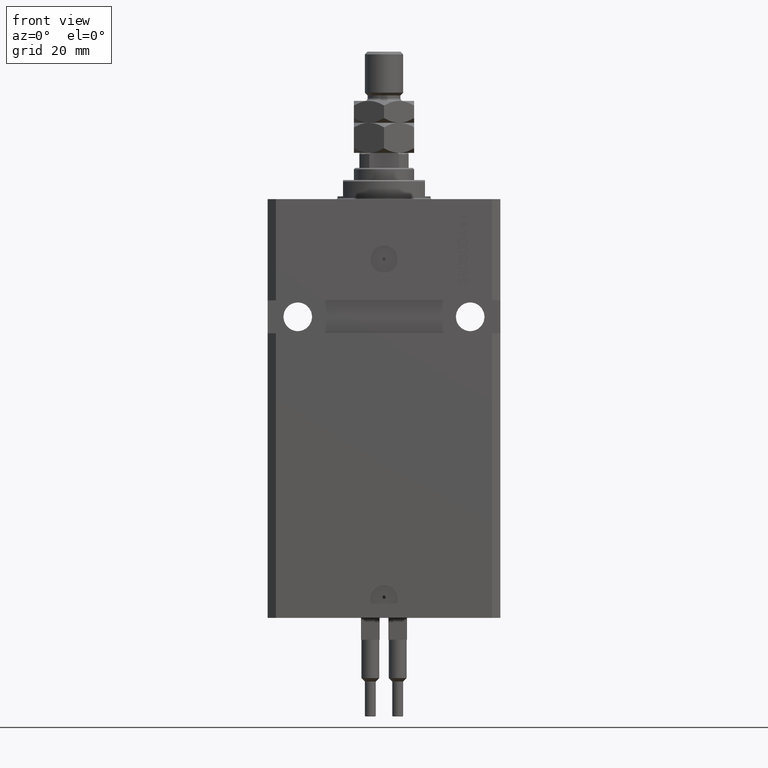
[diagram: clean part render]
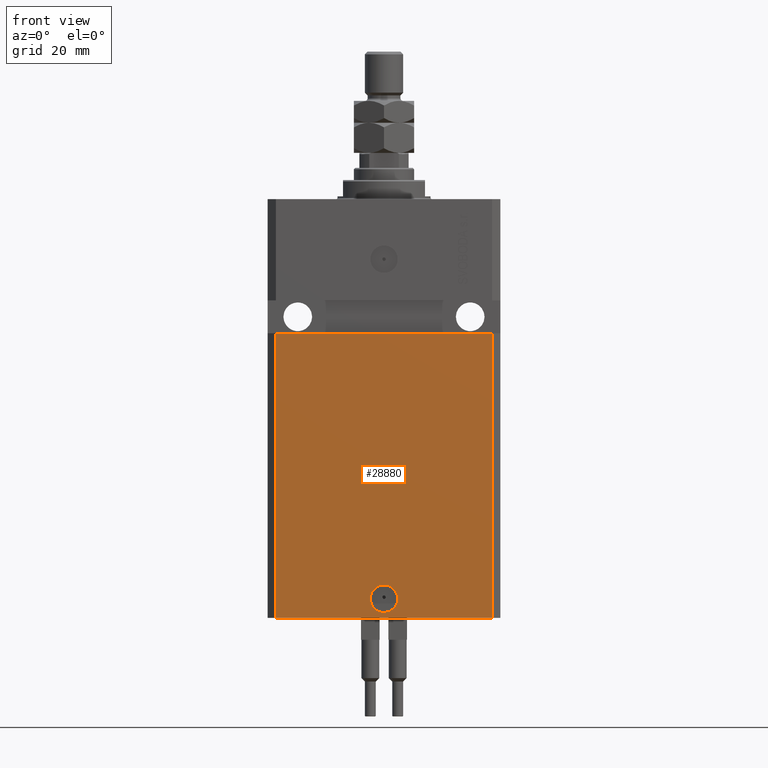
[diagram: same view with one face highlighted and labeled with its STEP entity id]
A machine part, front view. The second image highlights one B-rep face of the part: STEP entity #28880.
In plain terms, the highlighted planar face has unit normal (0, -1, 0).
Its self-contained STEP definition (entity closure, byte-faithful):
#1468 = VERTEX_POINT ( 'NONE', #47470 ) ;
#2294 = CARTESIAN_POINT ( 'NONE',  ( -39.50000000000000000, -31.50000000000000711, -48.99999999999999289 ) ) ;
#2905 = CARTESIAN_POINT ( 'NONE',  ( -39.50000000000000711, -31.50000000000000000, -153.0000000000000000 ) ) ;
#5664 = VECTOR ( 'NONE', #46433, 1000.000000000000000 ) ;
#7102 = FACE_BOUND ( 'NONE', #22197, .T. ) ;
#7620 = VERTEX_POINT ( 'NONE', #21914 ) ;
#10122 = LINE ( 'NONE', #28806, #20614 ) ;
#10475 = CARTESIAN_POINT ( 'NONE',  ( -39.50000000000000711, -31.50000000000000000, -153.0000000000000000 ) ) ;
#11194 = CIRCLE ( 'NONE', #26704, 5.000000000000006217 ) ;
#11377 = AXIS2_PLACEMENT_3D ( 'NONE', #18001, #14180, #22610 ) ;
#11718 = AXIS2_PLACEMENT_3D ( 'NONE', #18344, #18088, #34181 ) ;
#14180 = DIRECTION ( 'NONE',  ( 1.176083712526788232E-16, -1.000000000000000000, 0.000000000000000000 ) ) ;
#14471 = ORIENTED_EDGE ( 'NONE', *, *, #15501, .F. ) ;
#15280 = PLANE ( 'NONE',  #11718 ) ;
#15484 = CARTESIAN_POINT ( 'NONE',  ( -39.50000000000000711, -31.50000000000000000, -153.0000000000000000 ) ) ;
#15501 = EDGE_CURVE ( 'NONE', #7620, #34264, #35843, .T. ) ;
#15773 = CARTESIAN_POINT ( 'NONE',  ( 0.000000000000000000, -31.50000000000000000, -146.0000000000000000 ) ) ;
#16522 = DIRECTION ( 'NONE',  ( 1.000000000000000000, 0.000000000000000000, 0.000000000000000000 ) ) ;
#17053 = DIRECTION ( 'NONE',  ( 1.000000000000000000, 1.632680918566406054E-16, 1.632680918566406054E-16 ) ) ;
#18001 = CARTESIAN_POINT ( 'NONE',  ( 0.000000000000000000, -31.50000000000000000, -146.0000000000000000 ) ) ;
#18088 = DIRECTION ( 'NONE',  ( 0.000000000000000000, -1.000000000000000000, 0.000000000000000000 ) ) ;
#18131 = VERTEX_POINT ( 'NONE', #2294 ) ;
#18344 = CARTESIAN_POINT ( 'NONE',  ( -39.50000000000000711, -31.50000000000000000, -153.0000000000000000 ) ) ;
#20614 = VECTOR ( 'NONE', #17053, 1000.000000000000000 ) ;
#20658 = ORIENTED_EDGE ( 'NONE', *, *, #48565, .F. ) ;
#20911 = EDGE_LOOP ( 'NONE', ( #36973, #20658, #38990, #35667 ) ) ;
#21341 = VECTOR ( 'NONE', #34076, 1000.000000000000000 ) ;
#21893 = VERTEX_POINT ( 'NONE', #15484 ) ;
#21914 = CARTESIAN_POINT ( 'NONE',  ( -5.000000000000006217, -31.50000000000000000, -146.0000000000000000 ) ) ;
#22197 = EDGE_LOOP ( 'NONE', ( #42075, #14471 ) ) ;
#22610 = DIRECTION ( 'NONE',  ( 1.000000000000000000, 0.000000000000000000, 0.000000000000000000 ) ) ;
#26332 = DIRECTION ( 'NONE',  ( 1.000000000000000000, 0.000000000000000000, 0.000000000000000000 ) ) ;
#26435 = EDGE_CURVE ( 'NONE', #18131, #35184, #10122, .T. ) ;
#26704 = AXIS2_PLACEMENT_3D ( 'NONE', #15773, #36189, #16522 ) ;
#28806 = CARTESIAN_POINT ( 'NONE',  ( -42.50000000000001421, -31.50000000000000711, -48.99999999999999289 ) ) ;
#28880 = ADVANCED_FACE ( 'NONE', ( #7102, #50270 ), #15280, .T. ) ;
#34076 = DIRECTION ( 'NONE',  ( 0.000000000000000000, 0.000000000000000000, 1.000000000000000000 ) ) ;
#34181 = DIRECTION ( 'NONE',  ( 0.000000000000000000, -0.000000000000000000, -1.000000000000000000 ) ) ;
#34264 = VERTEX_POINT ( 'NONE', #41191 ) ;
#35184 = VERTEX_POINT ( 'NONE', #39502 ) ;
#35667 = ORIENTED_EDGE ( 'NONE', *, *, #42475, .T. ) ;
#35843 = CIRCLE ( 'NONE', #11377, 5.000000000000006217 ) ;
#36189 = DIRECTION ( 'NONE',  ( 1.176083712526788232E-16, -1.000000000000000000, 0.000000000000000000 ) ) ;
#36733 = EDGE_CURVE ( 'NONE', #34264, #7620, #11194, .T. ) ;
#36973 = ORIENTED_EDGE ( 'NONE', *, *, #26435, .F. ) ;
#37554 = VECTOR ( 'NONE', #26332, 1000.000000000000000 ) ;
#37754 = LINE ( 'NONE', #45674, #5664 ) ;
#37904 = LINE ( 'NONE', #2905, #21341 ) ;
#38990 = ORIENTED_EDGE ( 'NONE', *, *, #46116, .T. ) ;
#39502 = CARTESIAN_POINT ( 'NONE',  ( 39.50000000000000000, -31.49999999999999289, -48.99999999999997868 ) ) ;
#41191 = CARTESIAN_POINT ( 'NONE',  ( 5.000000000000006217, -31.50000000000000000, -146.0000000000000000 ) ) ;
#42075 = ORIENTED_EDGE ( 'NONE', *, *, #36733, .F. ) ;
#42475 = EDGE_CURVE ( 'NONE', #1468, #35184, #37754, .T. ) ;
#45674 = CARTESIAN_POINT ( 'NONE',  ( 39.50000000000000711, -31.50000000000000000, -153.0000000000000000 ) ) ;
#46116 = EDGE_CURVE ( 'NONE', #21893, #1468, #49317, .T. ) ;
#46433 = DIRECTION ( 'NONE',  ( 0.000000000000000000, 0.000000000000000000, 1.000000000000000000 ) ) ;
#47470 = CARTESIAN_POINT ( 'NONE',  ( 39.50000000000000711, -31.50000000000000000, -153.0000000000000000 ) ) ;
#48565 = EDGE_CURVE ( 'NONE', #21893, #18131, #37904, .T. ) ;
#49317 = LINE ( 'NONE', #10475, #37554 ) ;
#50270 = FACE_OUTER_BOUND ( 'NONE', #20911, .T. ) ;